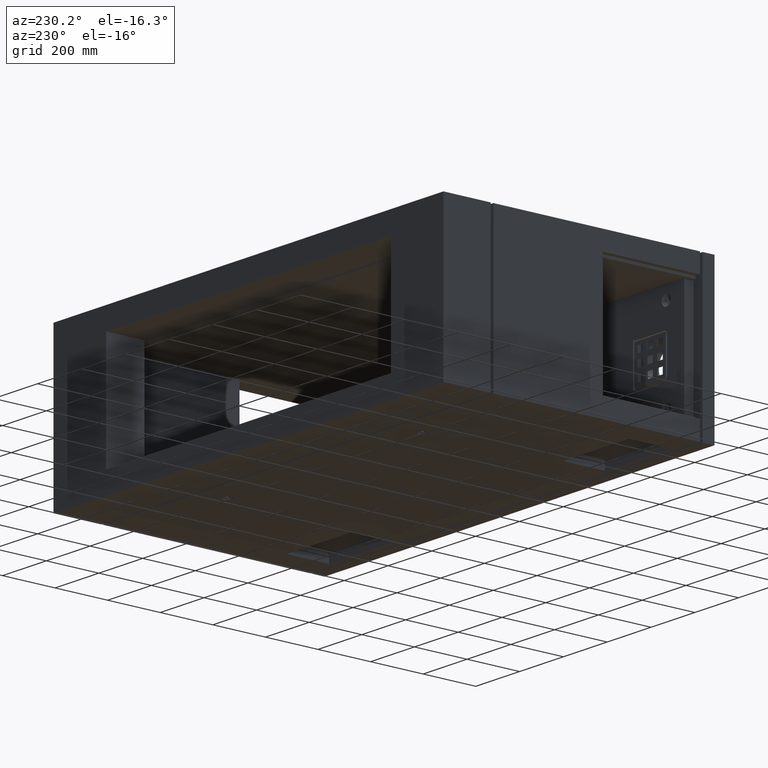
[diagram: clean part render]
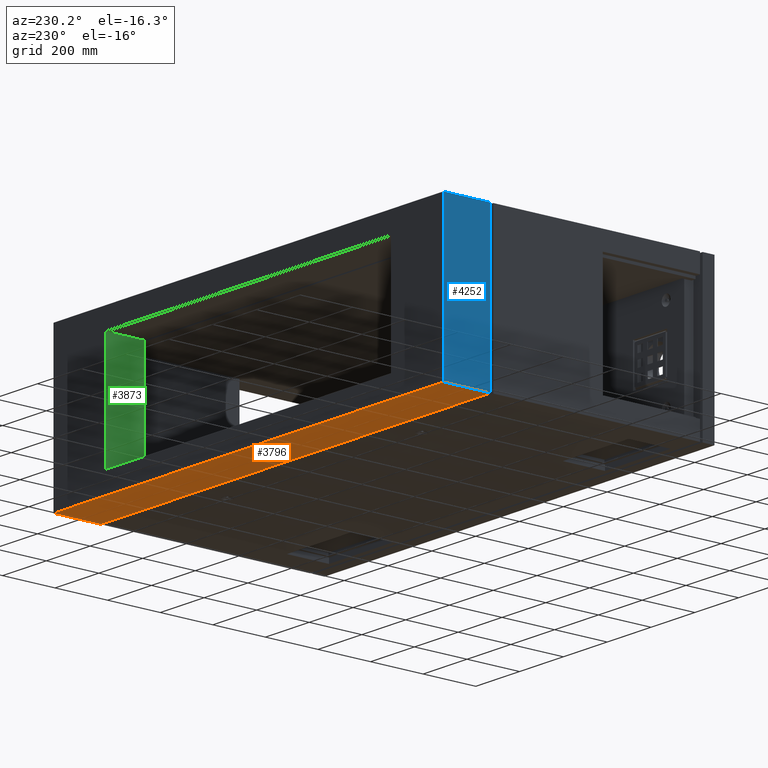
[diagram: same view with three faces highlighted in distinct colors, each labeled with its STEP entity id]
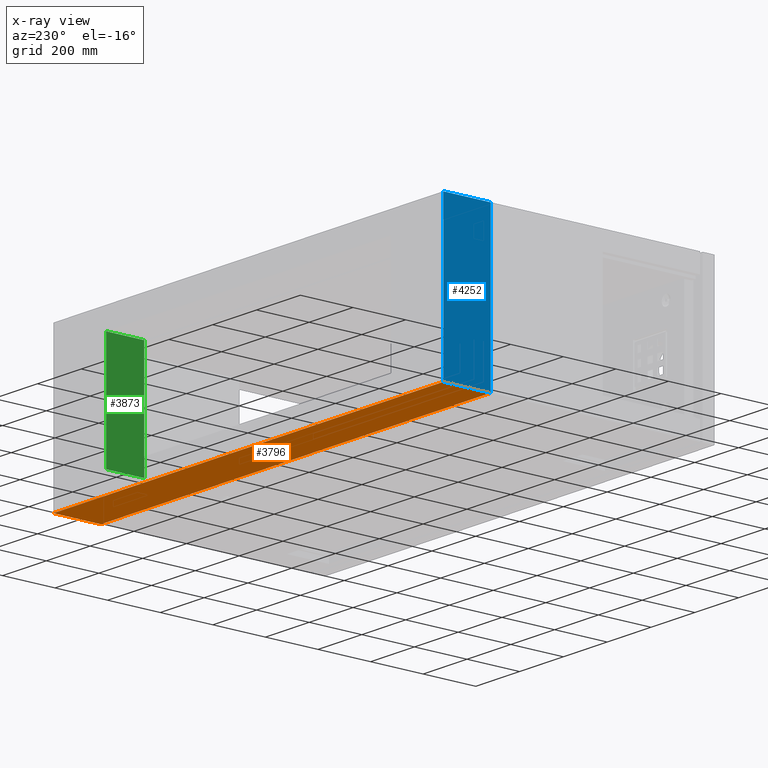
[diagram: x-ray of the same camera — body ghosted, the three highlighted faces saturated]
A machine part, auxiliary view with three faces highlighted in distinct colors.
The next image is the same camera in x-ray (body ghosted, the three faces saturated) — at least one of them is partly hidden behind the body in this view.
Their STEP definitions:

[orange] entity #3796 — the highlighted planar face has unit normal (-0, 0, -1).
#248 = ORIENTED_EDGE ( 'NONE', *, *, #9486, .T. ) ;
#563 = DIRECTION ( 'NONE',  ( 4.336808689942018506E-18, 1.000000000000000000, 0.000000000000000000 ) ) ;
#607 = DIRECTION ( 'NONE',  ( 4.336808689942018506E-18, 1.000000000000000000, 0.000000000000000000 ) ) ;
#1316 = LINE ( 'NONE', #4317, #12330 ) ;
#1355 = DIRECTION ( 'NONE',  ( 4.336808689942018506E-18, 1.000000000000000000, 0.000000000000000000 ) ) ;
#1525 = VECTOR ( 'NONE', #607, 1000.000000000000000 ) ;
#1527 = VERTEX_POINT ( 'NONE', #1575 ) ;
#1575 = CARTESIAN_POINT ( 'NONE',  ( 890.0000000000000000, 851.0000000000000000, -290.0000000000000000 ) ) ;
#1669 = DIRECTION ( 'NONE',  ( -1.000000000000000000, 4.336808689942018506E-18, 4.336808689942018506E-18 ) ) ;
#1884 = VECTOR ( 'NONE', #6557, 1000.000000000000000 ) ;
#3796 = ADVANCED_FACE ( 'NONE', ( #12463 ), #4203, .T. ) ;
#4160 = CARTESIAN_POINT ( 'NONE',  ( -890.0000000000000000, 851.0000000000000000, -290.0000000000000000 ) ) ;
#4203 = PLANE ( 'NONE',  #6593 ) ;
#4317 = CARTESIAN_POINT ( 'NONE',  ( -890.0000000000000000, 851.0000000000000000, -290.0000000000000000 ) ) ;
#4507 = LINE ( 'NONE', #12175, #9067 ) ;
#4791 = VERTEX_POINT ( 'NONE', #8097 ) ;
#4887 = LINE ( 'NONE', #5526, #1884 ) ;
#5011 = ORIENTED_EDGE ( 'NONE', *, *, #6241, .T. ) ;
#5301 = DIRECTION ( 'NONE',  ( -4.336808689942018506E-18, 1.880790961315660815E-35, -1.000000000000000000 ) ) ;
#5526 = CARTESIAN_POINT ( 'NONE',  ( -890.0000000000000000, 1031.000000000000000, -290.0000000000000000 ) ) ;
#5931 = CARTESIAN_POINT ( 'NONE',  ( -890.0000000000000000, 851.0000000000000000, -290.0000000000000000 ) ) ;
#6191 = CARTESIAN_POINT ( 'NONE',  ( 890.0000000000000000, 1031.000000000000000, -290.0000000000000000 ) ) ;
#6241 = EDGE_CURVE ( 'NONE', #1527, #7473, #4507, .T. ) ;
#6371 = LINE ( 'NONE', #10274, #1525 ) ;
#6557 = DIRECTION ( 'NONE',  ( -1.000000000000000000, 4.336808689942018506E-18, 4.336808689942018506E-18 ) ) ;
#6593 = AXIS2_PLACEMENT_3D ( 'NONE', #4160, #5301, #1355 ) ;
#6791 = ORIENTED_EDGE ( 'NONE', *, *, #8035, .F. ) ;
#7473 = VERTEX_POINT ( 'NONE', #5931 ) ;
#8035 = EDGE_CURVE ( 'NONE', #1527, #9366, #6371, .T. ) ;
#8097 = CARTESIAN_POINT ( 'NONE',  ( -890.0000000000000000, 1031.000000000000000, -290.0000000000000000 ) ) ;
#8133 = ORIENTED_EDGE ( 'NONE', *, *, #9873, .F. ) ;
#9067 = VECTOR ( 'NONE', #1669, 1000.000000000000000 ) ;
#9366 = VERTEX_POINT ( 'NONE', #6191 ) ;
#9486 = EDGE_CURVE ( 'NONE', #7473, #4791, #1316, .T. ) ;
#9873 = EDGE_CURVE ( 'NONE', #9366, #4791, #4887, .T. ) ;
#10274 = CARTESIAN_POINT ( 'NONE',  ( 890.0000000000000000, 851.0000000000000000, -290.0000000000000000 ) ) ;
#11933 = EDGE_LOOP ( 'NONE', ( #8133, #6791, #5011, #248 ) ) ;
#12175 = CARTESIAN_POINT ( 'NONE',  ( -890.0000000000000000, 851.0000000000000000, -290.0000000000000000 ) ) ;
#12330 = VECTOR ( 'NONE', #563, 1000.000000000000000 ) ;
#12463 = FACE_OUTER_BOUND ( 'NONE', #11933, .T. ) ;

[blue] entity #4252 — the highlighted planar face has unit normal (-1, 0, 0).
#563 = DIRECTION ( 'NONE',  ( 4.336808689942018506E-18, 1.000000000000000000, 0.000000000000000000 ) ) ;
#753 = DIRECTION ( 'NONE',  ( 4.336808689942018506E-18, -1.880790961315660815E-35, 1.000000000000000000 ) ) ;
#1316 = LINE ( 'NONE', #4317, #12330 ) ;
#1921 = LINE ( 'NONE', #3230, #5843 ) ;
#3230 = CARTESIAN_POINT ( 'NONE',  ( -890.0000000000000000, 851.0000000000000000, 290.0000000000000000 ) ) ;
#3430 = CARTESIAN_POINT ( 'NONE',  ( -890.0000000000000000, 851.0000000000000000, 290.0000000000000000 ) ) ;
#3890 = LINE ( 'NONE', #8670, #9804 ) ;
#3956 = EDGE_CURVE ( 'NONE', #4791, #8068, #9891, .T. ) ;
#4252 = ADVANCED_FACE ( 'NONE', ( #9580 ), #9185, .T. ) ;
#4317 = CARTESIAN_POINT ( 'NONE',  ( -890.0000000000000000, 851.0000000000000000, -290.0000000000000000 ) ) ;
#4791 = VERTEX_POINT ( 'NONE', #8097 ) ;
#5026 = CARTESIAN_POINT ( 'NONE',  ( -890.0000000000000000, 1031.000000000000000, 290.0000000000000000 ) ) ;
#5606 = CARTESIAN_POINT ( 'NONE',  ( -890.0000000000000000, 1031.000000000000000, 290.0000000000000000 ) ) ;
#5843 = VECTOR ( 'NONE', #8994, 1000.000000000000000 ) ;
#5931 = CARTESIAN_POINT ( 'NONE',  ( -890.0000000000000000, 851.0000000000000000, -290.0000000000000000 ) ) ;
#5964 = ORIENTED_EDGE ( 'NONE', *, *, #9486, .F. ) ;
#6317 = DIRECTION ( 'NONE',  ( -1.000000000000000000, 4.336808689942018506E-18, 4.336808689942018506E-18 ) ) ;
#7071 = EDGE_LOOP ( 'NONE', ( #9507, #5964, #11625, #8706 ) ) ;
#7083 = CARTESIAN_POINT ( 'NONE',  ( -890.0000000000000000, 851.0000000000000000, 290.0000000000000000 ) ) ;
#7332 = VECTOR ( 'NONE', #753, 1000.000000000000000 ) ;
#7473 = VERTEX_POINT ( 'NONE', #5931 ) ;
#7731 = DIRECTION ( 'NONE',  ( 4.336808689942018506E-18, -1.880790961315660815E-35, 1.000000000000000000 ) ) ;
#8068 = VERTEX_POINT ( 'NONE', #5026 ) ;
#8097 = CARTESIAN_POINT ( 'NONE',  ( -890.0000000000000000, 1031.000000000000000, -290.0000000000000000 ) ) ;
#8221 = AXIS2_PLACEMENT_3D ( 'NONE', #3430, #6317, #9107 ) ;
#8670 = CARTESIAN_POINT ( 'NONE',  ( -890.0000000000000000, 851.0000000000000000, 290.0000000000000000 ) ) ;
#8706 = ORIENTED_EDGE ( 'NONE', *, *, #11056, .T. ) ;
#8979 = EDGE_CURVE ( 'NONE', #7473, #11067, #3890, .T. ) ;
#8994 = DIRECTION ( 'NONE',  ( 4.336808689942018506E-18, 1.000000000000000000, 0.000000000000000000 ) ) ;
#9107 = DIRECTION ( 'NONE',  ( 4.336808689942018506E-18, 1.000000000000000000, 0.000000000000000000 ) ) ;
#9185 = PLANE ( 'NONE',  #8221 ) ;
#9486 = EDGE_CURVE ( 'NONE', #7473, #4791, #1316, .T. ) ;
#9507 = ORIENTED_EDGE ( 'NONE', *, *, #3956, .F. ) ;
#9580 = FACE_OUTER_BOUND ( 'NONE', #7071, .T. ) ;
#9804 = VECTOR ( 'NONE', #7731, 1000.000000000000000 ) ;
#9891 = LINE ( 'NONE', #5606, #7332 ) ;
#11056 = EDGE_CURVE ( 'NONE', #11067, #8068, #1921, .T. ) ;
#11067 = VERTEX_POINT ( 'NONE', #7083 ) ;
#11625 = ORIENTED_EDGE ( 'NONE', *, *, #8979, .T. ) ;
#12330 = VECTOR ( 'NONE', #563, 1000.000000000000000 ) ;

[green] entity #3873 — the highlighted planar face has unit normal (1, -0, -0).
#751 = ORIENTED_EDGE ( 'NONE', *, *, #10171, .F. ) ;
#1320 = DIRECTION ( 'NONE',  ( 4.336808689942018506E-18, 1.000000000000000000, 0.000000000000000000 ) ) ;
#1481 = PLANE ( 'NONE',  #7153 ) ;
#1571 = DIRECTION ( 'NONE',  ( 4.336808689942018506E-18, 1.000000000000000000, 0.000000000000000000 ) ) ;
#2442 = VECTOR ( 'NONE', #1320, 1000.000000000000000 ) ;
#2552 = DIRECTION ( 'NONE',  ( -5.330144394638262771E-16, 2.311581652931295612E-33, -1.000000000000000000 ) ) ;
#2731 = LINE ( 'NONE', #3065, #9417 ) ;
#3065 = CARTESIAN_POINT ( 'NONE',  ( 650.0000000000001137, 1031.000000000000000, 209.9999999999998010 ) ) ;
#3336 = DIRECTION ( 'NONE',  ( -5.330144394638262771E-16, 2.311581652931295612E-33, -1.000000000000000000 ) ) ;
#3792 = VECTOR ( 'NONE', #1571, 1000.000000000000000 ) ;
#3873 = ADVANCED_FACE ( 'NONE', ( #4434 ), #1481, .F. ) ;
#3978 = VECTOR ( 'NONE', #3336, 1000.000000000000000 ) ;
#4430 = LINE ( 'NONE', #7108, #3978 ) ;
#4434 = FACE_OUTER_BOUND ( 'NONE', #5045, .T. ) ;
#4537 = CARTESIAN_POINT ( 'NONE',  ( 650.0000000000001137, 851.0000000000000000, 209.9999999999998010 ) ) ;
#4546 = LINE ( 'NONE', #6346, #3792 ) ;
#5010 = LINE ( 'NONE', #6087, #2442 ) ;
#5045 = EDGE_LOOP ( 'NONE', ( #751, #10803, #7615, #9460 ) ) ;
#6087 = CARTESIAN_POINT ( 'NONE',  ( 650.0000000000001137, 851.0000000000000000, 209.9999999999998010 ) ) ;
#6134 = VERTEX_POINT ( 'NONE', #7210 ) ;
#6346 = CARTESIAN_POINT ( 'NONE',  ( 649.9999999999998863, 851.0000000000000000, -210.0000000000001421 ) ) ;
#6422 = DIRECTION ( 'NONE',  ( 1.000000000000000000, -4.336808689942018506E-18, -5.330144394638262771E-16 ) ) ;
#6847 = VERTEX_POINT ( 'NONE', #12144 ) ;
#7108 = CARTESIAN_POINT ( 'NONE',  ( 650.0000000000001137, 885.9999999999998863, 209.9999999999998010 ) ) ;
#7153 = AXIS2_PLACEMENT_3D ( 'NONE', #4537, #6422, #2552 ) ;
#7210 = CARTESIAN_POINT ( 'NONE',  ( 650.0000000000000000, 1031.000000000000000, 209.9999999999997442 ) ) ;
#7615 = ORIENTED_EDGE ( 'NONE', *, *, #12134, .T. ) ;
#8844 = DIRECTION ( 'NONE',  ( -5.330144394638261785E-16, 2.311581652931295270E-33, -1.000000000000000000 ) ) ;
#9417 = VECTOR ( 'NONE', #8844, 1000.000000000000000 ) ;
#9460 = ORIENTED_EDGE ( 'NONE', *, *, #12320, .F. ) ;
#9629 = VERTEX_POINT ( 'NONE', #12297 ) ;
#9660 = VERTEX_POINT ( 'NONE', #10513 ) ;
#10171 = EDGE_CURVE ( 'NONE', #9629, #6847, #4430, .T. ) ;
#10513 = CARTESIAN_POINT ( 'NONE',  ( 649.9999999999998863, 1031.000000000000000, -210.0000000000001421 ) ) ;
#10590 = EDGE_CURVE ( 'NONE', #9629, #6134, #5010, .T. ) ;
#10803 = ORIENTED_EDGE ( 'NONE', *, *, #10590, .T. ) ;
#12134 = EDGE_CURVE ( 'NONE', #6134, #9660, #2731, .T. ) ;
#12144 = CARTESIAN_POINT ( 'NONE',  ( 649.9999999999998863, 885.9999999999998863, -210.0000000000001990 ) ) ;
#12297 = CARTESIAN_POINT ( 'NONE',  ( 650.0000000000001137, 885.9999999999998863, 209.9999999999998010 ) ) ;
#12320 = EDGE_CURVE ( 'NONE', #6847, #9660, #4546, .T. ) ;